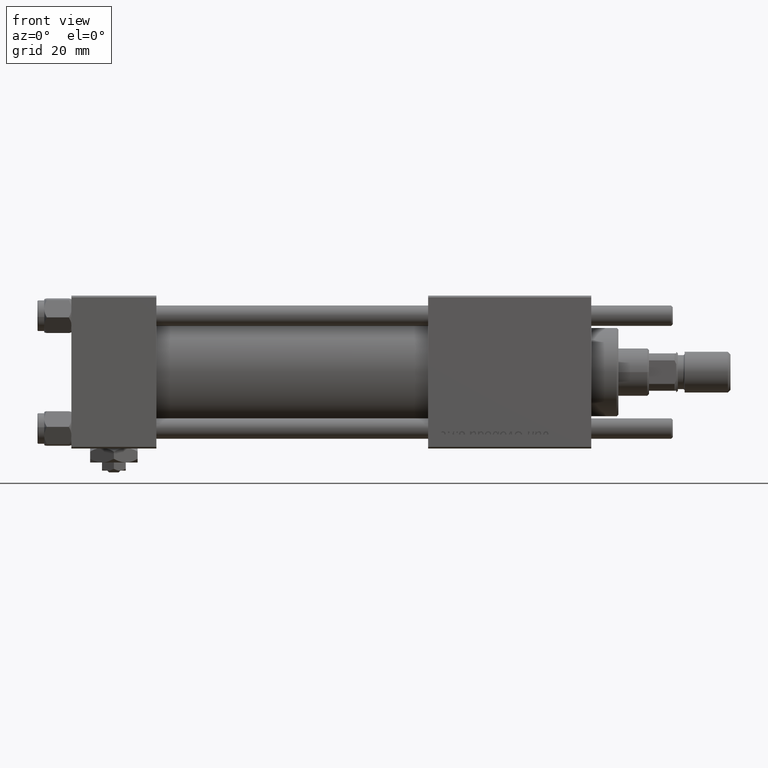
[diagram: clean part render]
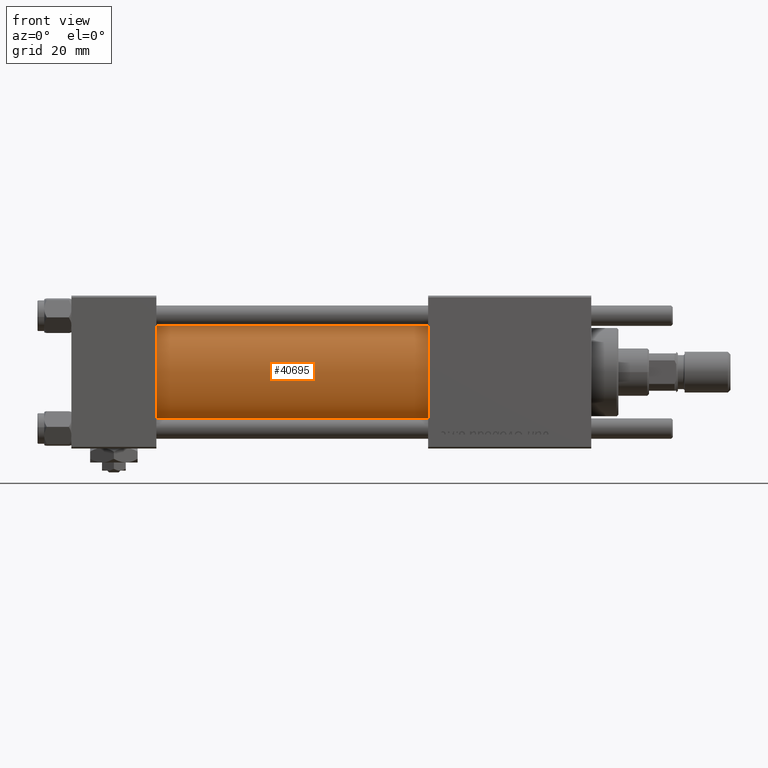
[diagram: same view with one face highlighted and labeled with its STEP entity id]
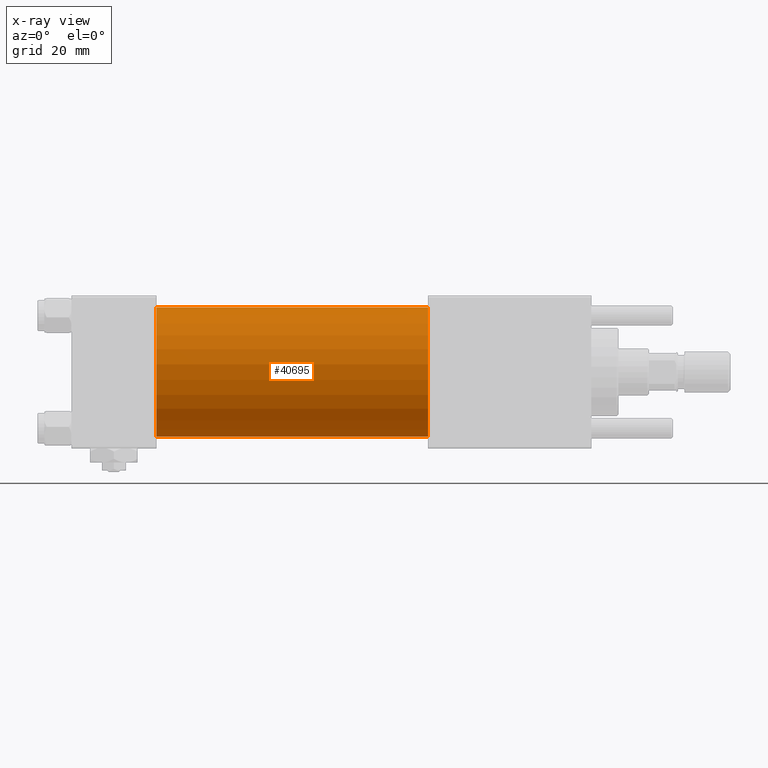
[diagram: x-ray of the same camera — body ghosted, the highlighted face saturated]
A machine part, front view. The second image highlights one B-rep face of the part: STEP entity #40695.
The next image is the same camera in x-ray: the body ghosted, the highlighted face saturated — about 0% of this face is hidden behind the body in this view.
In plain terms, the highlighted cylindrical surface (partial cylindrical patch) has radius 19 mm, axis along (-1, -0, -0).
Its self-contained STEP definition (entity closure, byte-faithful):
#1642 = CARTESIAN_POINT ( 'NONE',  ( 105.0000000000000142, -2.752562955852396712E-16, -19.00000000000000000 ) ) ;
#3945 = DIRECTION ( 'NONE',  ( -1.000000000000000000, -0.000000000000000000, -0.000000000000000000 ) ) ;
#4002 = AXIS2_PLACEMENT_3D ( 'NONE', #48925, #15822, #8043 ) ;
#4235 = CARTESIAN_POINT ( 'NONE',  ( 105.0000000000000142, -2.602085213965210642E-15, 0.000000000000000000 ) ) ;
#5436 = VECTOR ( 'NONE', #32265, 1000.000000000000000 ) ;
#6750 = AXIS2_PLACEMENT_3D ( 'NONE', #21569, #54084, #39777 ) ;
#6967 = CARTESIAN_POINT ( 'NONE',  ( 105.0000000000000142, -2.602085213965210642E-15, 19.00000000000000000 ) ) ;
#8043 = DIRECTION ( 'NONE',  ( 0.000000000000000000, 0.000000000000000000, 1.000000000000000000 ) ) ;
#9875 = CARTESIAN_POINT ( 'NONE',  ( 105.0000000000000142, -2.602085213965210642E-15, 19.00000000000000000 ) ) ;
#10577 = AXIS2_PLACEMENT_3D ( 'NONE', #4235, #3945, #17958 ) ;
#12491 = CIRCLE ( 'NONE', #6750, 19.00000000000000000 ) ;
#12601 = ORIENTED_EDGE ( 'NONE', *, *, #40763, .F. ) ;
#12911 = FACE_OUTER_BOUND ( 'NONE', #51435, .T. ) ;
#13312 = VERTEX_POINT ( 'NONE', #6967 ) ;
#13495 = ORIENTED_EDGE ( 'NONE', *, *, #28638, .T. ) ;
#13551 = CIRCLE ( 'NONE', #4002, 19.00000000000000000 ) ;
#15369 = VERTEX_POINT ( 'NONE', #33758 ) ;
#15385 = VECTOR ( 'NONE', #37973, 1000.000000000000000 ) ;
#15822 = DIRECTION ( 'NONE',  ( 1.000000000000000000, -0.000000000000000000, 0.000000000000000000 ) ) ;
#17958 = DIRECTION ( 'NONE',  ( 0.000000000000000000, 0.000000000000000000, 1.000000000000000000 ) ) ;
#21569 = CARTESIAN_POINT ( 'NONE',  ( 105.0000000000000142, -2.602085213965210642E-15, 0.000000000000000000 ) ) ;
#28638 = EDGE_CURVE ( 'NONE', #13312, #55089, #36732, .T. ) ;
#28724 = LINE ( 'NONE', #50212, #15385 ) ;
#32265 = DIRECTION ( 'NONE',  ( -1.000000000000000000, -0.000000000000000000, -0.000000000000000000 ) ) ;
#33758 = CARTESIAN_POINT ( 'NONE',  ( 24.99999999999999289, -2.752562955852396712E-16, -19.00000000000000000 ) ) ;
#34999 = CYLINDRICAL_SURFACE ( 'NONE', #10577, 19.00000000000000000 ) ;
#36135 = ORIENTED_EDGE ( 'NONE', *, *, #47783, .F. ) ;
#36732 = LINE ( 'NONE', #9875, #5436 ) ;
#37973 = DIRECTION ( 'NONE',  ( -1.000000000000000000, -0.000000000000000000, -0.000000000000000000 ) ) ;
#39777 = DIRECTION ( 'NONE',  ( 0.000000000000000000, 0.000000000000000000, -1.000000000000000000 ) ) ;
#40695 = ADVANCED_FACE ( 'NONE', ( #12911 ), #34999, .T. ) ;
#40763 = EDGE_CURVE ( 'NONE', #13312, #43634, #12491, .T. ) ;
#43634 = VERTEX_POINT ( 'NONE', #1642 ) ;
#45211 = EDGE_CURVE ( 'NONE', #55089, #15369, #13551, .T. ) ;
#47783 = EDGE_CURVE ( 'NONE', #43634, #15369, #28724, .T. ) ;
#48925 = CARTESIAN_POINT ( 'NONE',  ( 24.99999999999999289, -2.602085213965210642E-15, 0.000000000000000000 ) ) ;
#50212 = CARTESIAN_POINT ( 'NONE',  ( 105.0000000000000142, -2.752562955852396712E-16, -19.00000000000000000 ) ) ;
#51435 = EDGE_LOOP ( 'NONE', ( #36135, #12601, #13495, #52409 ) ) ;
#52409 = ORIENTED_EDGE ( 'NONE', *, *, #45211, .T. ) ;
#54084 = DIRECTION ( 'NONE',  ( 1.000000000000000000, 0.000000000000000000, 0.000000000000000000 ) ) ;
#55089 = VERTEX_POINT ( 'NONE', #55688 ) ;
#55688 = CARTESIAN_POINT ( 'NONE',  ( 24.99999999999999289, -2.602085213965210642E-15, 19.00000000000000000 ) ) ;